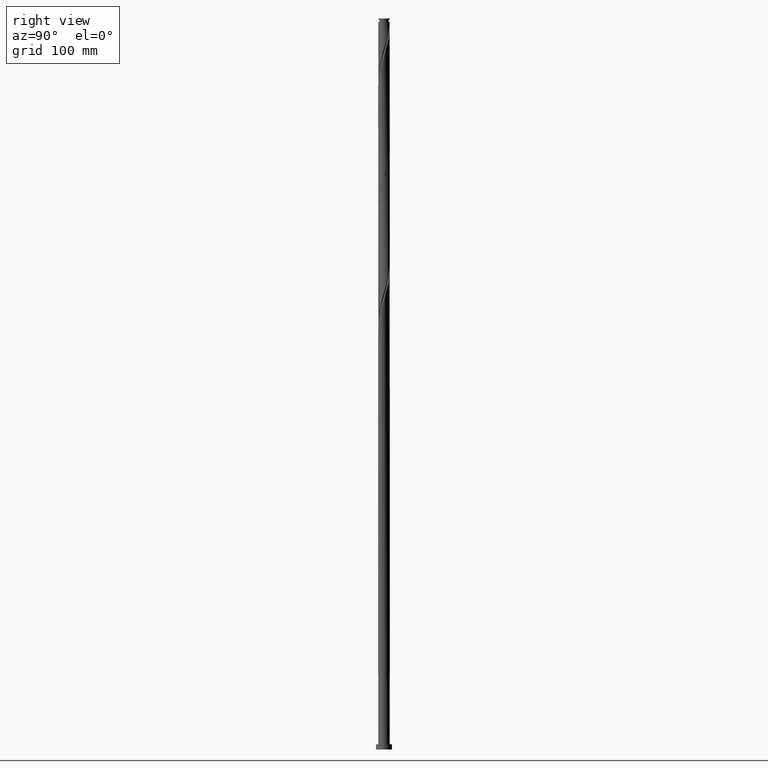
[diagram: clean part render]
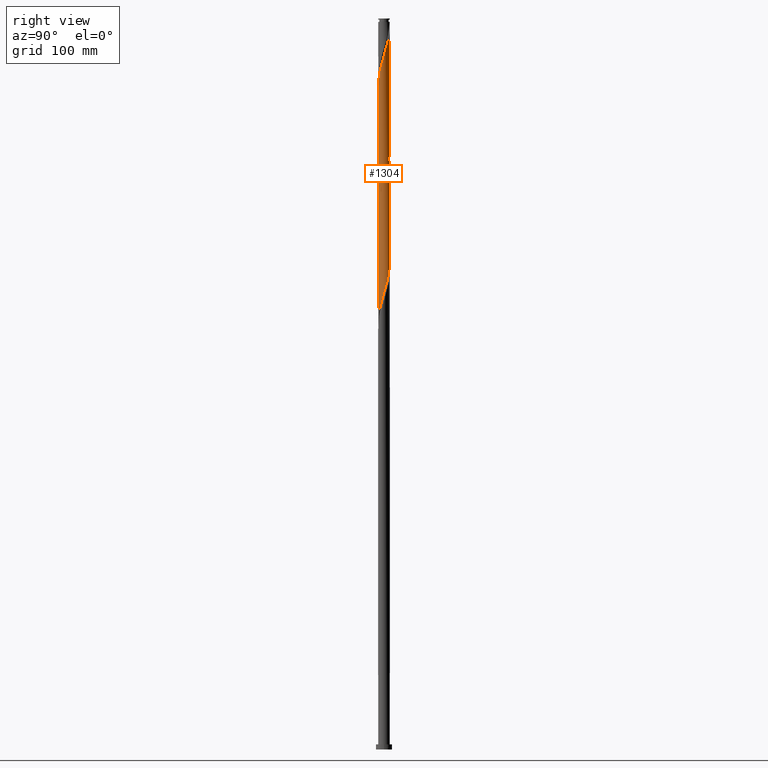
[diagram: same view with one face highlighted and labeled with its STEP entity id]
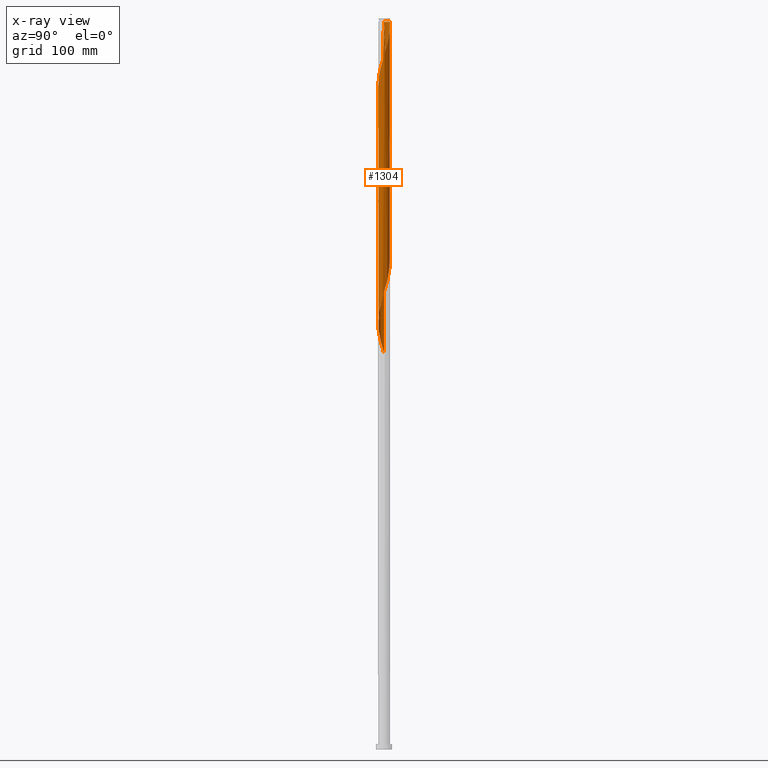
[diagram: x-ray of the same camera — body ghosted, the highlighted face saturated]
A machine part, right view. The second image highlights one B-rep face of the part: STEP entity #1304.
The next image is the same camera in x-ray: the body ghosted, the highlighted face saturated — about 0% of this face is hidden behind the body in this view.
In plain terms, the highlighted cylindrical surface (bore or boss wall) has radius 8 mm, axis along (-0, -0, -1).
Its self-contained STEP definition (entity closure, byte-faithful):
#1 = CARTESIAN_POINT ( 'NONE',  ( -1.534169798028466980, -7.876721169679195889, 901.5174675760173386 ) ) ;
#10 = CARTESIAN_POINT ( 'NONE',  ( 7.274163668017026296, -3.388651101095534912, 614.0174675760172249 ) ) ;
#42 = CARTESIAN_POINT ( 'NONE',  ( -7.274163668017024520, 3.388651101095537577, 864.0174675760171112 ) ) ;
#51 = CARTESIAN_POINT ( 'NONE',  ( -5.406950929103490289, 5.896175171267122650, 686.9341342426841948 ) ) ;
#55 = CIRCLE ( 'NONE', #1978, 7.999999999999890754 ) ;
#77 = CARTESIAN_POINT ( 'NONE',  ( -4.977749994673994038, -6.262747399546228166, 566.1008009093508235 ) ) ;
#80 = CARTESIAN_POINT ( 'NONE',  ( -8.000000000000000000, 0.000000000000000000, 1000.000000000000000 ) ) ;
#88 = CARTESIAN_POINT ( 'NONE',  ( -3.388651101095537577, -7.274163668017024520, 572.3508009093504825 ) ) ;
#92 = CARTESIAN_POINT ( 'NONE',  ( 6.654504820273303700, -4.484861084918268403, 776.5174675760173386 ) ) ;
#99 = CARTESIAN_POINT ( 'NONE',  ( 3.320297584678852054, -7.278435542695680383, 595.2674675760173386 ) ) ;
#104 = CARTESIAN_POINT ( 'NONE',  ( 2.747472284455731995, -7.539748629775563593, 759.8508009093507098 ) ) ;
#109 = CARTESIAN_POINT ( 'NONE',  ( -8.000000000000000000, 9.731847490443674520E-15, 542.2474124481318540 ) ) ;
#117 = EDGE_CURVE ( 'NONE', #1140, #447, #1757, .T. ) ;
#125 = VECTOR ( 'NONE', #1227, 1000.000000000000000 ) ;
#131 = CARTESIAN_POINT ( 'NONE',  ( 8.000000000000000000, 1.004529656605612617E-14, 792.2474124481319677 ) ) ;
#132 = EDGE_CURVE ( 'NONE', #619, #820, #1032, .T. ) ;
#143 = CARTESIAN_POINT ( 'NONE',  ( 7.714708464689045364, -2.209001280875615425, 784.8508009093504825 ) ) ;
#154 = CARTESIAN_POINT ( 'NONE',  ( -1.534169798028462317, 7.876721169679182566, 672.3508009093505962 ) ) ;
#157 = CARTESIAN_POINT ( 'NONE',  ( 7.714708464689061351, 2.209001280875614981, 955.6841342426840811 ) ) ;
#167 = CARTESIAN_POINT ( 'NONE',  ( 7.948231931362837344, 0.9086303787922720421, 628.6008009093507098 ) ) ;
#169 = CARTESIAN_POINT ( 'NONE',  ( 7.278435542695695482, -3.320297584678860048, 936.9341342426838537 ) ) ;
#178 = CARTESIAN_POINT ( 'NONE',  ( 1.591979899370603579, 7.839999999999996305, 661.9341342426841948 ) ) ;
#180 = CARTESIAN_POINT ( 'NONE',  ( 4.977749994673999367, -6.262747399546241489, 924.4341342426839674 ) ) ;
#189 = CARTESIAN_POINT ( 'NONE',  ( -6.321711438104527403, -4.942911879387833274, 726.5174675760172249 ) ) ;
#191 = CARTESIAN_POINT ( 'NONE',  ( 7.274163668017043172, 3.388651101095537133, 959.8508009093507098 ) ) ;
#200 = CARTESIAN_POINT ( 'NONE',  ( -6.669416946860160067, -4.418017382144901362, 724.4341342426840811 ) ) ;
#202 = CARTESIAN_POINT ( 'NONE',  ( 5.896175171267131532, -5.406950929103502723, 928.6008009093508235 ) ) ;
#244 = DIRECTION ( 'NONE',  ( -0.000000000000000000, -0.000000000000000000, -1.000000000000000000 ) ) ;
#266 = CARTESIAN_POINT ( 'NONE',  ( 5.870989978819152633, -5.470638904429720561, 605.6841342426839674 ) ) ;
#270 = CARTESIAN_POINT ( 'NONE',  ( 4.418017382144901362, -6.669416946860163620, 766.1008009093507098 ) ) ;
#279 = CARTESIAN_POINT ( 'NONE',  ( 5.406950929103489401, -5.896175171267124426, 603.6008009093507098 ) ) ;
#286 = CARTESIAN_POINT ( 'NONE',  ( -0.3459337791547553720, -7.992517114178720128, 749.4341342426839674 ) ) ;
#289 = CARTESIAN_POINT ( 'NONE',  ( -3.893122884901979663, -7.017122455615809606, 893.1841342426837400 ) ) ;
#295 = CARTESIAN_POINT ( 'NONE',  ( -4.484861084918265739, -6.654504820273304588, 568.1841342426840811 ) ) ;
#302 = CARTESIAN_POINT ( 'NONE',  ( -0.9086303787922734854, 7.948231931362837344, 836.9341342426841948 ) ) ;
#303 = CARTESIAN_POINT ( 'NONE',  ( -5.870989978819161514, -5.470638904429729443, 884.8508009093504825 ) ) ;
#312 = CARTESIAN_POINT ( 'NONE',  ( 5.896175171267124426, 5.406950929103489401, 811.9341342426839674 ) ) ;
#325 = CARTESIAN_POINT ( 'NONE',  ( 7.274163668017026296, -3.388651101095534912, 780.6841342426839674 ) ) ;
#327 = CARTESIAN_POINT ( 'NONE',  ( -4.942911879387842156, -6.321711438104533620, 889.0174675760174523 ) ) ;
#338 = CARTESIAN_POINT ( 'NONE',  ( -5.470638904429722338, -5.870989978819149080, 730.6841342426838537 ) ) ;
#348 = CARTESIAN_POINT ( 'NONE',  ( -4.484861084918265739, -6.654504820273304588, 734.8508009093505962 ) ) ;
#349 = CARTESIAN_POINT ( 'NONE',  ( 3.320297584678860936, 7.278435542695695482, 978.6008009093507098 ) ) ;
#359 = CARTESIAN_POINT ( 'NONE',  ( -4.418017382144901362, 6.669416946860160067, 682.7674675760173386 ) ) ;
#369 = CARTESIAN_POINT ( 'NONE',  ( 7.708234899727377964, 2.140821041242096712, 632.7674675760172249 ) ) ;
#371 = CARTESIAN_POINT ( 'NONE',  ( -0.9086303787922772601, -7.948231931362848890, 903.6008009093507098 ) ) ;
#383 = CARTESIAN_POINT ( 'NONE',  ( 6.964334244145165442, -3.936756093006901214, 611.9341342426841948 ) ) ;
#397 = CARTESIAN_POINT ( 'NONE',  ( 7.017122455615807830, -3.893122884901982772, 934.8508009093505962 ) ) ;
#428 = VECTOR ( 'NONE', #1955, 1000.000000000000000 ) ;
#447 = VERTEX_POINT ( 'NONE', #2141 ) ;
#450 = CARTESIAN_POINT ( 'NONE',  ( -2.798826190985574502, -7.494436066353037162, 574.4341342426839674 ) ) ;
#459 = FACE_OUTER_BOUND ( 'NONE', #2117, .T. ) ;
#463 = CARTESIAN_POINT ( 'NONE',  ( 3.388651101095534912, 7.274163668017026296, 822.3508009093505962 ) ) ;
#468 = CARTESIAN_POINT ( 'NONE',  ( -7.017122455615797172, -3.893122884901969005, 555.6841342426840811 ) ) ;
#471 = CARTESIAN_POINT ( 'NONE',  ( -3.320297584678852942, 7.278435542695680383, 845.2674675760172249 ) ) ;
#482 = CARTESIAN_POINT ( 'NONE',  ( 1.591979899370603579, 7.839999999999996305, 828.6008009093507098 ) ) ;
#507 = CARTESIAN_POINT ( 'NONE',  ( 4.484861084918269292, 6.654504820273303700, 651.5174675760173386 ) ) ;
#518 = CARTESIAN_POINT ( 'NONE',  ( 6.669416946860163620, 4.418017382144901362, 641.1008009093505962 ) ) ;
#521 = CARTESIAN_POINT ( 'NONE',  ( -0.9749585178655880702, 7.965291535310963233, 993.1841342426838537 ) ) ;
#531 = CARTESIAN_POINT ( 'NONE',  ( -7.714708464689045364, 2.209001280875610540, 701.5174675760173386 ) ) ;
#532 = CARTESIAN_POINT ( 'NONE',  ( 0.9086303787922784814, 7.948231931362848890, 986.9341342426840811 ) ) ;
#542 = CARTESIAN_POINT ( 'NONE',  ( 5.896175171267124426, 5.406950929103489401, 645.2674675760172249 ) ) ;
#553 = CARTESIAN_POINT ( 'NONE',  ( 3.388651101095534912, 7.274163668017026296, 655.6841342426836263 ) ) ;
#555 = CARTESIAN_POINT ( 'NONE',  ( 2.798826190985576279, -7.494436066353052261, 916.1008009093507098 ) ) ;
#565 = CARTESIAN_POINT ( 'NONE',  ( 4.484861084918268403, -6.654504820273320576, 922.3508009093507098 ) ) ;
#597 = CARTESIAN_POINT ( 'NONE',  ( 8.000000000000000000, 9.797174393178825657E-16, 995.2674675760173386 ) ) ;
#606 = VERTEX_POINT ( 'NONE', #1546 ) ;
#609 = CARTESIAN_POINT ( 'NONE',  ( 2.140821041242096712, -7.708234899727375300, 591.1008009093508235 ) ) ;
#614 =( BOUNDED_CURVE ( )  B_SPLINE_CURVE ( 2, ( #2285, #1186, #2076, #677, #1939, #1386, #2113, #1050, #689, #817, #1905, #303, #1532, #327, #1893, #289, #1014, #2136, #922, #1, #371, #2181, #1617, #912, #2324, #1069, #555, #1775, #888, #565, #180, #1588, #202, #1412, #1277, #397, #169, #1080, #714, #1255, #1266, #1459, #747, #1604, #2309, #157, #1245, #191, #1634, #1959, #705, #2173, #1231, #901, #1812, #1091, #349, #2010, #1426, #725, #532, #1625, #1970, #521, #1101 ),
 .UNSPECIFIED., .F., .T. ) 
 B_SPLINE_CURVE_WITH_KNOTS ( ( 3, 2, 2, 2, 2, 2, 2, 2, 2, 2, 2, 2, 2, 2, 2, 2, 2, 2, 2, 2, 2, 2, 2, 2, 2, 2, 2, 2, 2, 2, 2, 2, 3 ),
 ( 0.5545283537410734542, 0.5562500000000000222, 0.5625000000000000000, 0.5687499999999999778, 0.5749999999999999556, 0.5812500000000000444, 0.5875000000000000222, 0.5937500000000000000, 0.5999999999999999778, 0.6062499999999999556, 0.6125000000000000444, 0.6187500000000000222, 0.6250000000000000000, 0.6312499999999999778, 0.6374999999999999556, 0.6437500000000000444, 0.6500000000000000222, 0.6562500000000000000, 0.6624999999999999778, 0.6687499999999999556, 0.6750000000000000444, 0.6812500000000000222, 0.6875000000000000000, 0.6937499999999999778, 0.6999999999999999556, 0.7062500000000000444, 0.7125000000000000222, 0.7187500000000000000, 0.7249999999999999778, 0.7312499999999999556, 0.7375000000000000444, 0.7437500000000000222, 0.7500000000000000000 ),
 .UNSPECIFIED. ) 
 CURVE ( )  GEOMETRIC_REPRESENTATION_ITEM ( )  RATIONAL_B_SPLINE_CURVE ( ( 0.9079722749903149648, 0.9083189438770252755, 0.9090909090909713441, 0.9062884852119967860, 0.9090909090909713441, 0.9062884852119967860, 0.9090909090909713441, 0.9062884852119967860, 0.9090909090909713441, 0.9062884852119967860, 0.9090909090909713441, 0.9062884852119967860, 0.9090909090909713441, 0.9062884852119967860, 0.9090909090909713441, 0.9062884852119967860, 0.9090909090909713441, 0.9062884852119967860, 0.9090909090909713441, 0.9062884852119967860, 0.9090909090909713441, 0.9062884852119967860, 0.9090909090909713441, 0.9062884852119967860, 0.9090909090909713441, 0.9062884852119967860, 0.9090909090909713441, 0.9062884852119967860, 0.9090909090909713441, 0.9062884852119967860, 0.9090909090909713441, 0.9062884852119967860, 0.9090909090909713441, 0.9062884852119967860, 0.9090909090909713441, 0.9062884852119967860, 0.9090909090909713441, 0.9062884852119967860, 0.9090909090909713441, 0.9062884852119967860, 0.9090909090909713441, 0.9062884852119967860, 0.9090909090909713441, 0.9062884852119967860, 0.9090909090909713441, 0.9062884852119967860, 0.9090909090909713441, 0.9062884852119967860, 0.9090909090909713441, 0.9062884852119967860, 0.9090909090909713441, 0.9062884852119967860, 0.9090909090909713441, 0.9062884852119967860, 0.9090909090909713441, 0.9062884852119967860, 0.9090909090909713441, 0.9062884852119967860, 0.9090909090909713441, 0.9062884852119967860, 0.9090909090909713441, 0.9062884852119967860, 0.9090909090909713441, 0.9062884852119967860, 0.9090909090909713441 ) ) 
 REPRESENTATION_ITEM ( '' )  );
#619 = VERTEX_POINT ( 'NONE', #1261 ) ;
#622 = CARTESIAN_POINT ( 'NONE',  ( -7.539748629775563593, -2.747472284455732883, 551.5174675760173386 ) ) ;
#627 = AXIS2_PLACEMENT_3D ( 'NONE', #1143, #2224, #1852 ) ;
#633 = CARTESIAN_POINT ( 'NONE',  ( -7.708234899727375300, -2.140821041242097600, 549.4341342426843084 ) ) ;
#637 = CARTESIAN_POINT ( 'NONE',  ( 2.140821041242096712, -7.708234899727375300, 757.7674675760172249 ) ) ;
#644 = CARTESIAN_POINT ( 'NONE',  ( 0.2830909595560835434, -8.019742693046488569, 584.8508009093507098 ) ) ;
#649 = CARTESIAN_POINT ( 'NONE',  ( 5.870989978819152633, -5.470638904429720561, 772.3508009093504825 ) ) ;
#660 = CARTESIAN_POINT ( 'NONE',  ( 6.669416946860163620, 4.418017382144901362, 807.7674675760172249 ) ) ;
#676 = CARTESIAN_POINT ( 'NONE',  ( -0.2830909595560845982, 8.019742693046490345, 834.8508009093505962 ) ) ;
#677 = CARTESIAN_POINT ( 'NONE',  ( -7.965291535310963233, -0.9749585178655929552, 868.1841342426838537 ) ) ;
#688 = CARTESIAN_POINT ( 'NONE',  ( -4.418017382144901362, 6.669416946860160067, 849.4341342426841948 ) ) ;
#689 = CARTESIAN_POINT ( 'NONE',  ( -6.964334244145182318, -3.936756093006904766, 878.6008009093504825 ) ) ;
#702 = CARTESIAN_POINT ( 'NONE',  ( -7.708234899727375300, -2.140821041242097600, 716.1008009093505962 ) ) ;
#705 = CARTESIAN_POINT ( 'NONE',  ( 6.262747399546241489, 4.977749994673999367, 966.1008009093504825 ) ) ;
#713 = CARTESIAN_POINT ( 'NONE',  ( 7.714708464689045364, -2.209001280875615425, 618.1841342426839674 ) ) ;
#714 = CARTESIAN_POINT ( 'NONE',  ( 7.708234899727388623, -2.140821041242105149, 941.1008009093508235 ) ) ;
#723 = CARTESIAN_POINT ( 'NONE',  ( -4.942911879387833274, 6.321711438104524738, 684.8508009093507098 ) ) ;
#725 = CARTESIAN_POINT ( 'NONE',  ( 1.534169798028471865, 7.876721169679195889, 984.8508009093507098 ) ) ;
#734 = CARTESIAN_POINT ( 'NONE',  ( -7.274163668017024520, 3.388651101095537577, 697.3508009093507098 ) ) ;
#747 = CARTESIAN_POINT ( 'NONE',  ( 7.992517114178731674, 0.3459337791547519858, 949.4341342426839674 ) ) ;
#769 = CARTESIAN_POINT ( 'NONE',  ( -6.964334244145165442, 3.936756093006901214, 861.9341342426839674 ) ) ;
#777 = CARTESIAN_POINT ( 'NONE',  ( 0.3459337791547542618, 7.992517114178720128, 666.1008009093507098 ) ) ;
#799 = ORIENTED_EDGE ( 'NONE', *, *, #2077, .T. ) ;
#802 = CARTESIAN_POINT ( 'NONE',  ( -6.669416946860160067, -4.418017382144901362, 557.7674675760173386 ) ) ;
#812 = CARTESIAN_POINT ( 'NONE',  ( -5.470638904429722338, -5.870989978819149080, 564.0174675760172249 ) ) ;
#816 = CARTESIAN_POINT ( 'NONE',  ( 4.942911879387828833, -6.321711438104529179, 768.1841342426839674 ) ) ;
#817 = CARTESIAN_POINT ( 'NONE',  ( -6.654504820273320576, -4.484861084918269292, 880.6841342426839674 ) ) ;
#820 = VERTEX_POINT ( 'NONE', #1464 ) ;
#827 = CARTESIAN_POINT ( 'NONE',  ( 7.017122455615797172, 3.893122884901971670, 805.6841342426840811 ) ) ;
#840 = CARTESIAN_POINT ( 'NONE',  ( 4.977749994673994038, 6.262747399546228166, 816.1008009093507098 ) ) ;
#853 = CARTESIAN_POINT ( 'NONE',  ( 8.000000000000001776, -0.1730478206450925260, 791.6734001380656309 ) ) ;
#865 = CARTESIAN_POINT ( 'NONE',  ( 6.964334244145165442, -3.936756093006901214, 778.6008009093505962 ) ) ;
#875 = CARTESIAN_POINT ( 'NONE',  ( -7.494436066353039827, 2.798826190985574502, 699.4341342426840811 ) ) ;
#886 = CARTESIAN_POINT ( 'NONE',  ( 8.019742693046488569, 0.2830909595560792691, 626.5174675760172249 ) ) ;
#888 = CARTESIAN_POINT ( 'NONE',  ( 3.936756093006904766, -6.964334244145182318, 920.2674675760173386 ) ) ;
#897 = CARTESIAN_POINT ( 'NONE',  ( -7.839999999999996305, 1.591979899370602247, 703.6008009093507098 ) ) ;
#901 = CARTESIAN_POINT ( 'NONE',  ( 4.942911879387840379, 6.321711438104537173, 972.3508009093504825 ) ) ;
#910 = CARTESIAN_POINT ( 'NONE',  ( 7.992517114178720128, -0.3459337791547558716, 624.4341342426840811 ) ) ;
#912 = CARTESIAN_POINT ( 'NONE',  ( 0.9749585178655925111, -7.965291535310963233, 909.8508009093507098 ) ) ;
#922 = CARTESIAN_POINT ( 'NONE',  ( -2.140821041242104705, -7.708234899727388623, 899.4341342426840811 ) ) ;
#932 = CARTESIAN_POINT ( 'NONE',  ( 0.000000000000000000, 0.000000000000000000, 995.2674675760173386 ) ) ;
#941 = CARTESIAN_POINT ( 'NONE',  ( -7.992517114178720128, 0.3459337791547547059, 874.4341342426840811 ) ) ;
#950 = CARTESIAN_POINT ( 'NONE',  ( 7.839999999999996305, -1.591979899370603357, 620.2674675760173386 ) ) ;
#961 = CARTESIAN_POINT ( 'NONE',  ( -0.3459337791547553720, -7.992517114178720128, 582.7674675760172249 ) ) ;
#977 = LINE ( 'NONE', #80, #1292 ) ;
#988 = CARTESIAN_POINT ( 'NONE',  ( 3.893122884901969005, -7.017122455615798060, 764.0174675760174523 ) ) ;
#1001 = CARTESIAN_POINT ( 'NONE',  ( 6.262747399546228166, -4.977749994673994038, 774.4341342426840811 ) ) ;
#1007 = CARTESIAN_POINT ( 'NONE',  ( -8.000000000000001776, -0.4557898995714417256, 543.7593009664768715 ) ) ;
#1013 = CARTESIAN_POINT ( 'NONE',  ( 7.876721169679182566, 1.534169798028464315, 797.3508009093508235 ) ) ;
#1014 = CARTESIAN_POINT ( 'NONE',  ( -3.320297584678860048, -7.278435542695695482, 895.2674675760171112 ) ) ;
#1023 = CARTESIAN_POINT ( 'NONE',  ( -5.406950929103490289, 5.896175171267122650, 853.6008009093508235 ) ) ;
#1032 = LINE ( 'NONE', #1770, #428 ) ;
#1035 = CARTESIAN_POINT ( 'NONE',  ( -5.870989978819149080, 5.470638904429722338, 855.6841342426838537 ) ) ;
#1048 = CARTESIAN_POINT ( 'NONE',  ( -5.896175171267124426, -5.406950929103489401, 728.6008009093505962 ) ) ;
#1050 = CARTESIAN_POINT ( 'NONE',  ( -7.274163668017040507, -3.388651101095541573, 876.5174675760171112 ) ) ;
#1058 = CARTESIAN_POINT ( 'NONE',  ( -8.019742693046488569, -0.2830909595560839320, 709.8508009093505962 ) ) ;
#1068 = CARTESIAN_POINT ( 'NONE',  ( -2.747472284455732883, 7.539748629775563593, 676.5174675760171112 ) ) ;
#1069 = CARTESIAN_POINT ( 'NONE',  ( 2.209001280875611428, -7.714708464689061351, 914.0174675760173386 ) ) ;
#1078 = CARTESIAN_POINT ( 'NONE',  ( -2.140821041242097600, 7.708234899727375300, 674.4341342426841948 ) ) ;
#1080 = CARTESIAN_POINT ( 'NONE',  ( 7.539748629775577804, -2.747472284455737768, 939.0174675760172249 ) ) ;
#1085 = ORIENTED_EDGE ( 'NONE', *, *, #2272, .F. ) ;
#1090 = CARTESIAN_POINT ( 'NONE',  ( -7.017122455615797172, -3.893122884901969005, 722.3508009093505962 ) ) ;
#1091 = CARTESIAN_POINT ( 'NONE',  ( 3.893122884901982772, 7.017122455615806942, 976.5174675760173386 ) ) ;
#1101 = CARTESIAN_POINT ( 'NONE',  ( -1.591979899369008189, 7.839999999983941592, 995.2674675760174523 ) ) ;
#1114 = CARTESIAN_POINT ( 'NONE',  ( -7.714708464689045364, 2.209001280875610540, 868.1841342426839674 ) ) ;
#1118 = ORIENTED_EDGE ( 'NONE', *, *, #117, .T. ) ;
#1140 = VERTEX_POINT ( 'NONE', #597 ) ;
#1143 = CARTESIAN_POINT ( 'NONE',  ( 0.000000000000000000, 0.000000000000000000, 1000.000000000000000 ) ) ;
#1157 = CARTESIAN_POINT ( 'NONE',  ( -3.936756093006901214, -6.964334244145165442, 570.2674675760173386 ) ) ;
#1161 = CARTESIAN_POINT ( 'NONE',  ( 7.494436066353037162, -2.798826190985575391, 782.7674675760172249 ) ) ;
#1174 = CARTESIAN_POINT ( 'NONE',  ( 0.9086303787922723751, -7.948231931362837344, 753.6008009093507098 ) ) ;
#1185 = CARTESIAN_POINT ( 'NONE',  ( -2.140821041242097600, 7.708234899727375300, 841.1008009093507098 ) ) ;
#1186 = CARTESIAN_POINT ( 'NONE',  ( -8.000000000000015987, -0.1730478206450995204, 865.5282016806355614 ) ) ;
#1208 = CARTESIAN_POINT ( 'NONE',  ( -1.534169798028462317, 7.876721169679182566, 839.0174675760173386 ) ) ;
#1219 = CARTESIAN_POINT ( 'NONE',  ( -7.992517114178720128, 0.3459337791547547059, 707.7674675760173386 ) ) ;
#1227 = DIRECTION ( 'NONE',  ( -0.000000000000000000, -0.000000000000000000, -1.000000000000000000 ) ) ;
#1230 = CARTESIAN_POINT ( 'NONE',  ( 7.017122455615797172, 3.893122884901971670, 639.0174675760174523 ) ) ;
#1231 = CARTESIAN_POINT ( 'NONE',  ( 5.406950929103504500, 5.896175171267130644, 970.2674675760174523 ) ) ;
#1243 = CARTESIAN_POINT ( 'NONE',  ( -7.278435542695680383, -3.320297584678852054, 720.2674675760173386 ) ) ;
#1245 = CARTESIAN_POINT ( 'NONE',  ( 7.494436066353052261, 2.798826190985576279, 957.7674675760174523 ) ) ;
#1254 = CARTESIAN_POINT ( 'NONE',  ( 6.321711438104529179, 4.942911879387827945, 643.1841342426839674 ) ) ;
#1255 = CARTESIAN_POINT ( 'NONE',  ( 7.876721169679195889, -1.534169798028471643, 943.1841342426838537 ) ) ;
#1261 = CARTESIAN_POINT ( 'NONE',  ( -7.999999999999890754, 0.000000000000000000, 995.2674675760173386 ) ) ;
#1264 = CARTESIAN_POINT ( 'NONE',  ( 7.494436066353037162, -2.798826190985575391, 616.1008009093507098 ) ) ;
#1266 = CARTESIAN_POINT ( 'NONE',  ( 7.948231931362848890, -0.9086303787922774822, 945.2674675760173386 ) ) ;
#1277 = CARTESIAN_POINT ( 'NONE',  ( 6.669416946860171613, -4.418017382144912020, 932.7674675760172249 ) ) ;
#1288 = CARTESIAN_POINT ( 'NONE',  ( -7.965291535310948134, 0.9749585178655936213, 872.3508009093504825 ) ) ;
#1292 = VECTOR ( 'NONE', #244, 1000.000000000000000 ) ;
#1299 = CARTESIAN_POINT ( 'NONE',  ( -7.839999999999996305, 1.591979899370602247, 870.2674675760172249 ) ) ;
#1304 = ADVANCED_FACE ( 'NONE', ( #459 ), #1501, .T. ) ;
#1332 = CARTESIAN_POINT ( 'NONE',  ( 4.942911879387828833, -6.321711438104529179, 601.5174675760172249 ) ) ;
#1348 = CARTESIAN_POINT ( 'NONE',  ( 7.539748629775564481, 2.747472284455729774, 801.5174675760171112 ) ) ;
#1354 = CARTESIAN_POINT ( 'NONE',  ( -2.209001280875610984, -7.714708464689045364, 576.5174675760174523 ) ) ;
#1360 = CARTESIAN_POINT ( 'NONE',  ( -2.209001280875610984, -7.714708464689045364, 743.1841342426839674 ) ) ;
#1371 = CARTESIAN_POINT ( 'NONE',  ( 7.948231931362837344, 0.9086303787922720421, 795.2674675760172249 ) ) ;
#1385 = CARTESIAN_POINT ( 'NONE',  ( 2.798826190985575391, 7.494436066353037162, 824.4341342426839674 ) ) ;
#1386 = CARTESIAN_POINT ( 'NONE',  ( -7.714708464689061351, -2.209001280875612316, 872.3508009093508235 ) ) ;
#1395 = CARTESIAN_POINT ( 'NONE',  ( 6.321711438104529179, 4.942911879387827945, 809.8508009093505962 ) ) ;
#1405 =( BOUNDED_CURVE ( )  B_SPLINE_CURVE ( 2, ( #131, #853, #1559, #1704, #1936, #143, #1161, #325, #865, #92, #1001, #649, #2122, #816, #270, #988, #2253, #104, #637, #2075, #1174, #1890, #286, #1539, #2262, #1360, #1446, #1786, #1948, #348, #1810, #338, #1048, #189, #200, #1090, #1243, #2134, #702, #1409, #1997, #1058, #1219, #1968, #897, #531, #875, #734, #2170, #2144, #1773, #1490, #51, #723, #359, #2335, #2322, #1068, #1078, #154, #1436, #1422, #777, #1586, #178, #1624, #1615, #553, #2157, #507, #1761, #2306, #542, #1254, #518, #1230, #1958, #1982, #369, #1798, #167, #886, #910, #1599, #950, #713, #1264, #10, #383, #1666, #2040, #266, #279, #1332, #2061, #1899, #99, #2082, #609, #1865, #2258, #644, #961, #1885, #1853, #1354, #450, #88, #1157, #295, #77, #812, #1525, #2248, #802, #468, #2071, #622, #633, #1876, #2236, #1007, #109 ),
 .UNSPECIFIED., .F., .T. ) 
 B_SPLINE_CURVE_WITH_KNOTS ( ( 3, 2, 2, 2, 2, 2, 2, 2, 2, 2, 2, 2, 2, 2, 2, 2, 2, 2, 2, 2, 2, 2, 2, 2, 2, 2, 2, 2, 2, 2, 2, 2, 2, 2, 2, 2, 2, 2, 2, 2, 2, 2, 2, 2, 2, 2, 2, 2, 2, 2, 2, 2, 2, 2, 2, 2, 2, 2, 2, 2, 2, 3 ),
 ( 0.5545283537410733432, 0.5562500000000000222, 0.5625000000000000000, 0.5687499999999999778, 0.5749999999999999556, 0.5812500000000000444, 0.5875000000000000222, 0.5937500000000000000, 0.5999999999999999778, 0.6062499999999999556, 0.6125000000000000444, 0.6187500000000000222, 0.6250000000000000000, 0.6312499999999999778, 0.6374999999999999556, 0.6437500000000000444, 0.6500000000000000222, 0.6562500000000000000, 0.6624999999999999778, 0.6687499999999999556, 0.6750000000000000444, 0.6812500000000000222, 0.6875000000000000000, 0.6937499999999999778, 0.6999999999999999556, 0.7062500000000000444, 0.7125000000000000222, 0.7187500000000000000, 0.7249999999999999778, 0.7312499999999999556, 0.7375000000000000444, 0.7437500000000000222, 0.7500000000000000000, 0.7562499999999999778, 0.7624999999999999556, 0.7687500000000000444, 0.7750000000000000222, 0.7812500000000000000, 0.7874999999999999778, 0.7937499999999999556, 0.8000000000000000444, 0.8062500000000000222, 0.8125000000000000000, 0.8187499999999999778, 0.8249999999999999556, 0.8312500000000000444, 0.8375000000000000222, 0.8437500000000000000, 0.8499999999999999778, 0.8562499999999999556, 0.8625000000000000444, 0.8687500000000000222, 0.8750000000000000000, 0.8812499999999999778, 0.8874999999999999556, 0.8937500000000000444, 0.9000000000000000222, 0.9062500000000000000, 0.9124999999999999778, 0.9187499999999999556, 0.9250000000000000444, 0.9295283537410735653 ),
 .UNSPECIFIED. ) 
 CURVE ( )  GEOMETRIC_REPRESENTATION_ITEM ( )  RATIONAL_B_SPLINE_CURVE ( ( 0.9079722749903077483, 0.9083189438770180590, 0.9090909090909642387, 0.9062884852119895696, 0.9090909090909642387, 0.9062884852119895696, 0.9090909090909642387, 0.9062884852119895696, 0.9090909090909642387, 0.9062884852119895696, 0.9090909090909642387, 0.9062884852119895696, 0.9090909090909642387, 0.9062884852119895696, 0.9090909090909642387, 0.9062884852119895696, 0.9090909090909642387, 0.9062884852119895696, 0.9090909090909642387, 0.9062884852119895696, 0.9090909090909642387, 0.9062884852119895696, 0.9090909090909642387, 0.9062884852119895696, 0.9090909090909642387, 0.9062884852119895696, 0.9090909090909642387, 0.9062884852119895696, 0.9090909090909642387, 0.9062884852119895696, 0.9090909090909642387, 0.9062884852119895696, 0.9090909090909642387, 0.9062884852119895696, 0.9090909090909642387, 0.9062884852119895696, 0.9090909090909642387, 0.9062884852119895696, 0.9090909090909642387, 0.9062884852119895696, 0.9090909090909642387, 0.9062884852119895696, 0.9090909090909642387, 0.9062884852119895696, 0.9090909090909642387, 0.9062884852119895696, 0.9090909090909642387, 0.9062884852119895696, 0.9090909090909642387, 0.9062884852119895696, 0.9090909090909642387, 0.9062884852119895696, 0.9090909090909642387, 0.9062884852119895696, 0.9090909090909642387, 0.9062884852119895696, 0.9090909090909642387, 0.9062884852119895696, 0.9090909090909642387, 0.9062884852119895696, 0.9090909090909642387, 0.9062884852119895696, 0.9090909090909642387, 0.9062884852119895696, 0.9090909090909642387, 0.9062884852119895696, 0.9090909090909642387, 0.9062884852119895696, 0.9090909090909642387, 0.9062884852119895696, 0.9090909090909642387, 0.9062884852119895696, 0.9090909090909642387, 0.9062884852119895696, 0.9090909090909642387, 0.9062884852119895696, 0.9090909090909642387, 0.9062884852119895696, 0.9090909090909642387, 0.9062884852119895696, 0.9090909090909642387, 0.9062884852119895696, 0.9090909090909642387, 0.9062884852119895696, 0.9090909090909642387, 0.9062884852119895696, 0.9090909090909642387, 0.9062884852119895696, 0.9090909090909642387, 0.9062884852119895696, 0.9090909090909642387, 0.9062884852119895696, 0.9090909090909642387, 0.9062884852119895696, 0.9090909090909642387, 0.9062884852119895696, 0.9090909090909642387, 0.9062884852119895696, 0.9090909090909642387, 0.9062884852119895696, 0.9090909090909642387, 0.9062884852119895696, 0.9090909090909642387, 0.9062884852119895696, 0.9090909090909642387, 0.9062884852119895696, 0.9090909090909642387, 0.9062884852119895696, 0.9090909090909642387, 0.9062884852119895696, 0.9090909090909642387, 0.9062884852119895696, 0.9090909090909642387, 0.9062884852119895696, 0.9090909090909642387, 0.9062884852119895696, 0.9090909090909642387, 0.9062884852119895696, 0.9090909090909642387, 0.9062884852119895696, 0.9090909090909642387, 0.9070604504259356382, 0.9079722749903078594 ) ) 
 REPRESENTATION_ITEM ( '' )  );
#1409 = CARTESIAN_POINT ( 'NONE',  ( -7.876721169679182566, -1.534169798028462317, 714.0174675760174523 ) ) ;
#1412 = CARTESIAN_POINT ( 'NONE',  ( 6.321711438104533620, -4.942911879387843044, 930.6841342426839674 ) ) ;
#1422 = CARTESIAN_POINT ( 'NONE',  ( -0.2830909595560845982, 8.019742693046490345, 668.1841342426840811 ) ) ;
#1426 = CARTESIAN_POINT ( 'NONE',  ( 2.140821041242105593, 7.708234899727388623, 982.7674675760174523 ) ) ;
#1436 = CARTESIAN_POINT ( 'NONE',  ( -0.9086303787922734854, 7.948231931362837344, 670.2674675760172249 ) ) ;
#1446 = CARTESIAN_POINT ( 'NONE',  ( -2.798826190985574502, -7.494436066353037162, 741.1008009093505962 ) ) ;
#1459 = CARTESIAN_POINT ( 'NONE',  ( 8.019742693046504556, -0.2830909595560844871, 947.3508009093505962 ) ) ;
#1464 = CARTESIAN_POINT ( 'NONE',  ( -8.000000000000001776, 1.626949963893191415E-15, 875.5807457814652253 ) ) ;
#1490 = CARTESIAN_POINT ( 'NONE',  ( -5.870989978819149080, 5.470638904429722338, 689.0174675760173386 ) ) ;
#1501 = CYLINDRICAL_SURFACE ( 'NONE', #627, 8.000000000000000000 ) ;
#1512 = ORIENTED_EDGE ( 'NONE', *, *, #132, .F. ) ;
#1521 = VERTEX_POINT ( 'NONE', #2213 ) ;
#1525 = CARTESIAN_POINT ( 'NONE',  ( -5.896175171267124426, -5.406950929103489401, 561.9341342426840811 ) ) ;
#1531 = CARTESIAN_POINT ( 'NONE',  ( -3.893122884901969893, 7.017122455615797172, 847.3508009093504825 ) ) ;
#1532 = CARTESIAN_POINT ( 'NONE',  ( -5.406950929103502723, -5.896175171267131532, 886.9341342426840811 ) ) ;
#1539 = CARTESIAN_POINT ( 'NONE',  ( -0.9749585178655937323, -7.965291535310948134, 747.3508009093505962 ) ) ;
#1546 = CARTESIAN_POINT ( 'NONE',  ( -8.000000000000015987, 7.910857622599857918E-16, 864.9541893705692246 ) ) ;
#1549 = CARTESIAN_POINT ( 'NONE',  ( 3.936756093006903434, 6.964334244145165442, 820.2674675760171112 ) ) ;
#1559 = CARTESIAN_POINT ( 'NONE',  ( 7.992517114178720128, -0.3459337791547558716, 791.1008009093507098 ) ) ;
#1573 = CARTESIAN_POINT ( 'NONE',  ( 0.3459337791547542618, 7.992517114178720128, 832.7674675760173386 ) ) ;
#1586 = CARTESIAN_POINT ( 'NONE',  ( 0.9749585178655932882, 7.965291535310948134, 664.0174675760172249 ) ) ;
#1588 = CARTESIAN_POINT ( 'NONE',  ( 5.470638904429729443, -5.870989978819161514, 926.5174675760171112 ) ) ;
#1599 = CARTESIAN_POINT ( 'NONE',  ( 7.965291535310948134, -0.9749585178655911788, 622.3508009093508235 ) ) ;
#1604 = CARTESIAN_POINT ( 'NONE',  ( 7.965291535310963233, 0.9749585178655886253, 951.5174675760173386 ) ) ;
#1615 = CARTESIAN_POINT ( 'NONE',  ( 2.798826190985575391, 7.494436066353037162, 657.7674675760172249 ) ) ;
#1617 = CARTESIAN_POINT ( 'NONE',  ( 0.3459337791547524854, -7.992517114178731674, 907.7674675760173386 ) ) ;
#1624 = CARTESIAN_POINT ( 'NONE',  ( 2.209001280875615425, 7.714708464689045364, 659.8508009093505962 ) ) ;
#1625 = CARTESIAN_POINT ( 'NONE',  ( 0.2830909595560848202, 8.019742693046504556, 989.0174675760172249 ) ) ;
#1634 = CARTESIAN_POINT ( 'NONE',  ( 6.964334244145182318, 3.936756093006904766, 961.9341342426841948 ) ) ;
#1646 = DIRECTION ( 'NONE',  ( -1.000000000000000000, 0.000000000000000000, 0.000000000000000000 ) ) ;
#1658 = DIRECTION ( 'NONE',  ( -0.000000000000000000, -0.000000000000000000, -1.000000000000000000 ) ) ;
#1666 = CARTESIAN_POINT ( 'NONE',  ( 6.654504820273303700, -4.484861084918268403, 609.8508009093504825 ) ) ;
#1704 = CARTESIAN_POINT ( 'NONE',  ( 7.965291535310948134, -0.9749585178655911788, 789.0174675760172249 ) ) ;
#1713 = CARTESIAN_POINT ( 'NONE',  ( 8.000000000000001776, 0.4557898995714603774, 793.7593009664769852 ) ) ;
#1725 = CARTESIAN_POINT ( 'NONE',  ( 8.000000000000000000, 1.004529656605612617E-14, 792.2474124481319677 ) ) ;
#1742 = ORIENTED_EDGE ( 'NONE', *, *, #1839, .F. ) ;
#1749 = CARTESIAN_POINT ( 'NONE',  ( 0.9749585178655932882, 7.965291535310948134, 830.6841342426837400 ) ) ;
#1757 = LINE ( 'NONE', #2303, #125 ) ;
#1761 = CARTESIAN_POINT ( 'NONE',  ( 4.977749994673994038, 6.262747399546228166, 649.4341342426840811 ) ) ;
#1770 = CARTESIAN_POINT ( 'NONE',  ( -8.000000000000000000, 0.000000000000000000, 1000.000000000000000 ) ) ;
#1773 = CARTESIAN_POINT ( 'NONE',  ( -6.262747399546228166, 4.977749994673994038, 691.1008009093508235 ) ) ;
#1775 = CARTESIAN_POINT ( 'NONE',  ( 3.388651101095540685, -7.274163668017040507, 918.1841342426839674 ) ) ;
#1786 = CARTESIAN_POINT ( 'NONE',  ( -3.388651101095537577, -7.274163668017024520, 739.0174675760172249 ) ) ;
#1798 = CARTESIAN_POINT ( 'NONE',  ( 7.876721169679182566, 1.534169798028464315, 630.6841342426839674 ) ) ;
#1810 = CARTESIAN_POINT ( 'NONE',  ( -4.977749994673994038, -6.262747399546228166, 732.7674675760173386 ) ) ;
#1812 = CARTESIAN_POINT ( 'NONE',  ( 4.418017382144912020, 6.669416946860170725, 974.4341342426840811 ) ) ;
#1835 = CARTESIAN_POINT ( 'NONE',  ( -7.494436066353039827, 2.798826190985574502, 866.1008009093505962 ) ) ;
#1839 = EDGE_CURVE ( 'NONE', #606, #1521, #614, .T. ) ;
#1852 = DIRECTION ( 'NONE',  ( -1.000000000000000000, 0.000000000000000000, 0.000000000000000000 ) ) ;
#1853 = CARTESIAN_POINT ( 'NONE',  ( -1.591979899370602913, -7.839999999999996305, 578.6008009093507098 ) ) ;
#1865 = CARTESIAN_POINT ( 'NONE',  ( 1.534169798028461207, -7.876721169679185230, 589.0174675760172249 ) ) ;
#1876 = CARTESIAN_POINT ( 'NONE',  ( -7.876721169679182566, -1.534169798028462317, 547.3508009093505962 ) ) ;
#1879 = CARTESIAN_POINT ( 'NONE',  ( -6.654504820273304588, 4.484861084918263963, 859.8508009093504825 ) ) ;
#1885 = CARTESIAN_POINT ( 'NONE',  ( -0.9749585178655937323, -7.965291535310948134, 580.6841342426839674 ) ) ;
#1890 = CARTESIAN_POINT ( 'NONE',  ( 0.2830909595560835434, -8.019742693046488569, 751.5174675760175660 ) ) ;
#1893 = CARTESIAN_POINT ( 'NONE',  ( -4.418017382144911132, -6.669416946860171613, 891.1008009093505962 ) ) ;
#1899 = CARTESIAN_POINT ( 'NONE',  ( 3.893122884901969005, -7.017122455615798060, 597.3508009093507098 ) ) ;
#1903 = CARTESIAN_POINT ( 'NONE',  ( 2.209001280875615425, 7.714708464689045364, 826.5174675760175660 ) ) ;
#1905 = CARTESIAN_POINT ( 'NONE',  ( -6.262747399546241489, -4.977749994674000256, 882.7674675760174523 ) ) ;
#1918 = CARTESIAN_POINT ( 'NONE',  ( 4.484861084918269292, 6.654504820273303700, 818.1841342426838537 ) ) ;
#1936 = CARTESIAN_POINT ( 'NONE',  ( 7.839999999999996305, -1.591979899370603357, 786.9341342426840811 ) ) ;
#1939 = CARTESIAN_POINT ( 'NONE',  ( -7.840000000000012292, -1.591979899370602913, 870.2674675760174523 ) ) ;
#1943 = ORIENTED_EDGE ( 'NONE', *, *, #2325, .F. ) ;
#1948 = CARTESIAN_POINT ( 'NONE',  ( -3.936756093006901214, -6.964334244145165442, 736.9341342426840811 ) ) ;
#1955 = DIRECTION ( 'NONE',  ( -0.000000000000000000, -0.000000000000000000, -1.000000000000000000 ) ) ;
#1958 = CARTESIAN_POINT ( 'NONE',  ( 7.278435542695680383, 3.320297584678850278, 636.9341342426840811 ) ) ;
#1959 = CARTESIAN_POINT ( 'NONE',  ( 6.654504820273318799, 4.484861084918271068, 964.0174675760173386 ) ) ;
#1968 = CARTESIAN_POINT ( 'NONE',  ( -7.965291535310948134, 0.9749585178655936213, 705.6841342426840811 ) ) ;
#1970 = CARTESIAN_POINT ( 'NONE',  ( -0.3459337791547515972, 7.992517114178731674, 991.1008009093508235 ) ) ;
#1974 = VERTEX_POINT ( 'NONE', #2159 ) ;
#1978 = AXIS2_PLACEMENT_3D ( 'NONE', #932, #1658, #1646 ) ;
#1982 = CARTESIAN_POINT ( 'NONE',  ( 7.539748629775564481, 2.747472284455729774, 634.8508009093505962 ) ) ;
#1988 =( BOUNDED_CURVE ( )  B_SPLINE_CURVE ( 2, ( #2205, #2020, #941, #1288, #1299, #1114, #1835, #42, #769, #1879, #2098, #1035, #1023, #2086, #688, #1531, #471, #2282, #1185, #1208, #302, #676, #1573, #1749, #482, #1903, #1385, #463, #1549, #1918, #840, #2270, #312, #1395, #660, #827, #2294, #1348, #2112, #1013, #1371, #1713, #1725 ),
 .UNSPECIFIED., .F., .T. ) 
 B_SPLINE_CURVE_WITH_KNOTS ( ( 3, 2, 2, 2, 2, 2, 2, 2, 2, 2, 2, 2, 2, 2, 2, 2, 2, 2, 2, 2, 2, 3 ),
 ( 0.4295283537410735097, 0.4312500000000000222, 0.4375000000000000000, 0.4437499999999999778, 0.4500000000000000111, 0.4562499999999999889, 0.4625000000000000222, 0.4687500000000000000, 0.4749999999999999778, 0.4812500000000000111, 0.4874999999999999889, 0.4937500000000000222, 0.5000000000000000000, 0.5062499999999999778, 0.5124999999999999556, 0.5187500000000000444, 0.5250000000000000222, 0.5312500000000000000, 0.5374999999999999778, 0.5437499999999999556, 0.5500000000000000444, 0.5545283537410733432 ),
 .UNSPECIFIED. ) 
 CURVE ( )  GEOMETRIC_REPRESENTATION_ITEM ( )  RATIONAL_B_SPLINE_CURVE ( ( 0.9079722749903077483, 0.9083189438770181701, 0.9090909090909642387, 0.9062884852119895696, 0.9090909090909642387, 0.9062884852119895696, 0.9090909090909642387, 0.9062884852119895696, 0.9090909090909642387, 0.9062884852119895696, 0.9090909090909642387, 0.9062884852119895696, 0.9090909090909642387, 0.9062884852119895696, 0.9090909090909642387, 0.9062884852119895696, 0.9090909090909642387, 0.9062884852119895696, 0.9090909090909642387, 0.9062884852119895696, 0.9090909090909642387, 0.9062884852119895696, 0.9090909090909642387, 0.9062884852119895696, 0.9090909090909642387, 0.9062884852119895696, 0.9090909090909642387, 0.9062884852119895696, 0.9090909090909642387, 0.9062884852119895696, 0.9090909090909642387, 0.9062884852119895696, 0.9090909090909642387, 0.9062884852119895696, 0.9090909090909642387, 0.9062884852119895696, 0.9090909090909642387, 0.9062884852119895696, 0.9090909090909642387, 0.9062884852119895696, 0.9090909090909642387, 0.9070604504259356382, 0.9079722749903077483 ) ) 
 REPRESENTATION_ITEM ( '' )  );
#1997 = CARTESIAN_POINT ( 'NONE',  ( -7.948231931362837344, -0.9086303787922729303, 711.9341342426840811 ) ) ;
#2010 = CARTESIAN_POINT ( 'NONE',  ( 2.747472284455738212, 7.539748629775577804, 980.6841342426839674 ) ) ;
#2020 = CARTESIAN_POINT ( 'NONE',  ( -8.000000000000000000, 0.1730478206451085688, 875.0067334713988885 ) ) ;
#2040 = CARTESIAN_POINT ( 'NONE',  ( 6.262747399546228166, -4.977749994673994038, 607.7674675760174523 ) ) ;
#2049 = ORIENTED_EDGE ( 'NONE', *, *, #2166, .T. ) ;
#2061 = CARTESIAN_POINT ( 'NONE',  ( 4.418017382144901362, -6.669416946860163620, 599.4341342426840811 ) ) ;
#2071 = CARTESIAN_POINT ( 'NONE',  ( -7.278435542695680383, -3.320297584678852054, 553.6008009093508235 ) ) ;
#2075 = CARTESIAN_POINT ( 'NONE',  ( 1.534169798028461207, -7.876721169679185230, 755.6841342426837400 ) ) ;
#2076 = CARTESIAN_POINT ( 'NONE',  ( -7.992517114178733451, -0.3459337791547530960, 866.1008009093503688 ) ) ;
#2077 = EDGE_CURVE ( 'NONE', #606, #1974, #977, .T. ) ;
#2082 = CARTESIAN_POINT ( 'NONE',  ( 2.747472284455731995, -7.539748629775563593, 593.1841342426837400 ) ) ;
#2086 = CARTESIAN_POINT ( 'NONE',  ( -4.942911879387833274, 6.321711438104524738, 851.5174675760173386 ) ) ;
#2098 = CARTESIAN_POINT ( 'NONE',  ( -6.262747399546228166, 4.977749994673994038, 857.7674675760174523 ) ) ;
#2112 = CARTESIAN_POINT ( 'NONE',  ( 7.708234899727377964, 2.140821041242096712, 799.4341342426843084 ) ) ;
#2113 = CARTESIAN_POINT ( 'NONE',  ( -7.494436066353052261, -2.798826190985576723, 874.4341342426839674 ) ) ;
#2117 = EDGE_LOOP ( 'NONE', ( #1512, #2049, #1742, #799, #1943, #2301, #1118, #1085 ) ) ;
#2122 = CARTESIAN_POINT ( 'NONE',  ( 5.406950929103489401, -5.896175171267124426, 770.2674675760172249 ) ) ;
#2134 = CARTESIAN_POINT ( 'NONE',  ( -7.539748629775563593, -2.747472284455732883, 718.1841342426837400 ) ) ;
#2136 = CARTESIAN_POINT ( 'NONE',  ( -2.747472284455740432, -7.539748629775576916, 897.3508009093507098 ) ) ;
#2141 = CARTESIAN_POINT ( 'NONE',  ( 8.000000000000000000, 1.004529656605612617E-14, 792.2474124481319677 ) ) ;
#2144 = CARTESIAN_POINT ( 'NONE',  ( -6.654504820273304588, 4.484861084918263963, 693.1841342426839674 ) ) ;
#2157 = CARTESIAN_POINT ( 'NONE',  ( 3.936756093006903434, 6.964334244145165442, 653.6008009093507098 ) ) ;
#2159 = CARTESIAN_POINT ( 'NONE',  ( -8.000000000000000000, 9.731847490443674520E-15, 542.2474124481318540 ) ) ;
#2166 = EDGE_CURVE ( 'NONE', #619, #1521, #55, .T. ) ;
#2170 = CARTESIAN_POINT ( 'NONE',  ( -6.964334244145165442, 3.936756093006901214, 695.2674675760173386 ) ) ;
#2173 = CARTESIAN_POINT ( 'NONE',  ( 5.870989978819165067, 5.470638904429725891, 968.1841342426839674 ) ) ;
#2181 = CARTESIAN_POINT ( 'NONE',  ( -0.2830909595560876513, -8.019742693046504556, 905.6841342426839674 ) ) ;
#2205 = CARTESIAN_POINT ( 'NONE',  ( -8.000000000000001776, 1.626949963893191415E-15, 875.5807457814652253 ) ) ;
#2213 = CARTESIAN_POINT ( 'NONE',  ( -1.591979899369008189, 7.839999999983941592, 995.2674675760173386 ) ) ;
#2224 = DIRECTION ( 'NONE',  ( -0.000000000000000000, -0.000000000000000000, -1.000000000000000000 ) ) ;
#2236 = CARTESIAN_POINT ( 'NONE',  ( -7.948231931362837344, -0.9086303787922729303, 545.2674675760174523 ) ) ;
#2248 = CARTESIAN_POINT ( 'NONE',  ( -6.321711438104527403, -4.942911879387833274, 559.8508009093508235 ) ) ;
#2253 = CARTESIAN_POINT ( 'NONE',  ( 3.320297584678852054, -7.278435542695680383, 761.9341342426839674 ) ) ;
#2258 = CARTESIAN_POINT ( 'NONE',  ( 0.9086303787922723751, -7.948231931362837344, 586.9341342426840811 ) ) ;
#2262 = CARTESIAN_POINT ( 'NONE',  ( -1.591979899370602913, -7.839999999999996305, 745.2674675760171112 ) ) ;
#2270 = CARTESIAN_POINT ( 'NONE',  ( 5.470638904429721450, 5.870989978819150856, 814.0174675760169976 ) ) ;
#2272 = EDGE_CURVE ( 'NONE', #820, #447, #1988, .T. ) ;
#2282 = CARTESIAN_POINT ( 'NONE',  ( -2.747472284455732883, 7.539748629775563593, 843.1841342426840811 ) ) ;
#2285 = CARTESIAN_POINT ( 'NONE',  ( -8.000000000000015987, 7.910857622599857918E-16, 864.9541893705692246 ) ) ;
#2294 = CARTESIAN_POINT ( 'NONE',  ( 7.278435542695680383, 3.320297584678850278, 803.6008009093505962 ) ) ;
#2301 = ORIENTED_EDGE ( 'NONE', *, *, #117, .F. ) ;
#2303 = CARTESIAN_POINT ( 'NONE',  ( 8.000000000000000000, 9.797174393178825657E-16, 1000.000000000000000 ) ) ;
#2306 = CARTESIAN_POINT ( 'NONE',  ( 5.470638904429721450, 5.870989978819150856, 647.3508009093505962 ) ) ;
#2309 = CARTESIAN_POINT ( 'NONE',  ( 7.840000000000012292, 1.591979899370601803, 953.6008009093505962 ) ) ;
#2322 = CARTESIAN_POINT ( 'NONE',  ( -3.320297584678852942, 7.278435542695680383, 678.6008009093508235 ) ) ;
#2324 = CARTESIAN_POINT ( 'NONE',  ( 1.591979899370602247, -7.840000000000012292, 911.9341342426840811 ) ) ;
#2325 = EDGE_CURVE ( 'NONE', #447, #1974, #1405, .T. ) ;
#2335 = CARTESIAN_POINT ( 'NONE',  ( -3.893122884901969893, 7.017122455615797172, 680.6841342426839674 ) ) ;